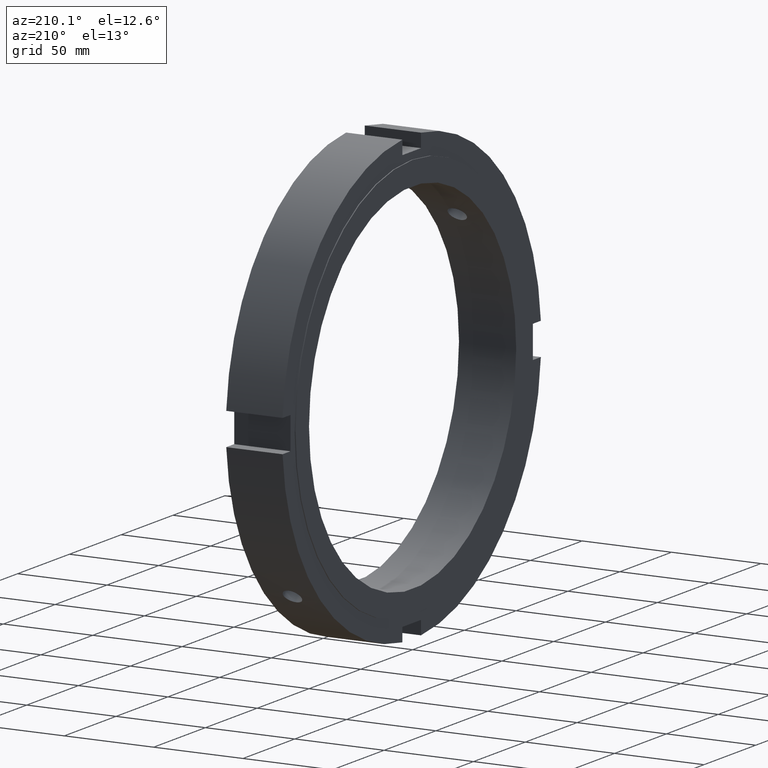
[diagram: clean part render]
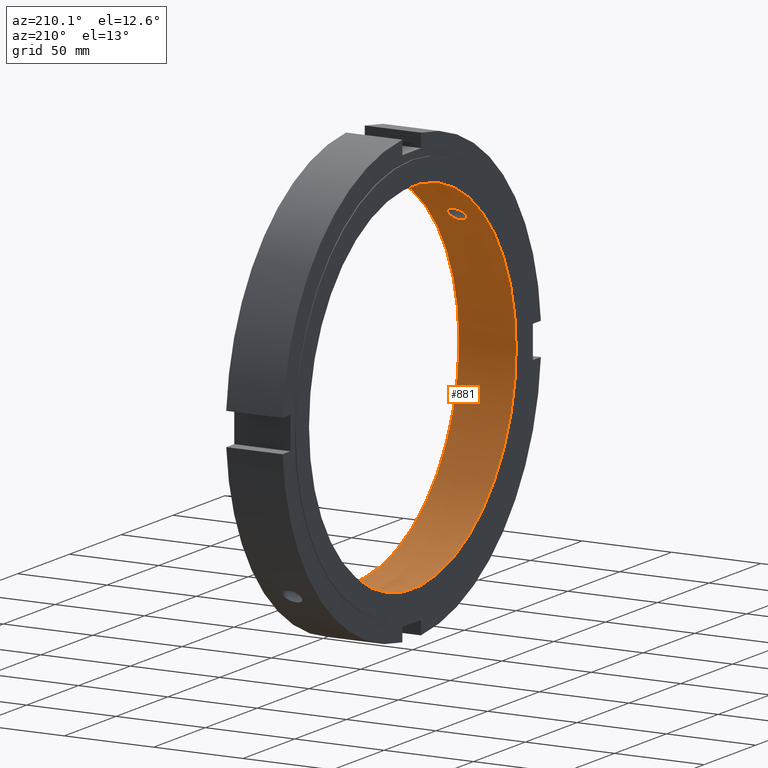
[diagram: same view with one face highlighted and labeled with its STEP entity id]
A machine part, auxiliary view. The second image highlights one B-rep face of the part: STEP entity #881.
In plain terms, the highlighted cylindrical surface (bore or boss wall) has radius 100 mm, axis along (1, 0, 0).
Its self-contained STEP definition (entity closure, byte-faithful):
#114=CARTESIAN_POINT('',(15.999999999999979,-74.193358875861520,67.047337745190305));
#115=VERTEX_POINT('',#114);
#116=CARTESIAN_POINT('',(15.999999999999979,-74.193358875861492,67.047337745190333));
#117=CARTESIAN_POINT('',(16.634581936719329,-74.193358875861492,67.047337745190333));
#118=CARTESIAN_POINT('',(17.311387968910935,-74.108383700795017,67.141746327502418));
#119=CARTESIAN_POINT('',(18.556310772006050,-73.760763251919144,67.523451030525536));
#120=CARTESIAN_POINT('',(19.124436701656222,-73.497876808904849,67.810497567163452));
#121=CARTESIAN_POINT('',(20.021584330169027,-72.886178554204179,68.467557656156472));
#122=CARTESIAN_POINT('',(20.410445743173572,-72.496526139867967,68.881356700433287));
#123=CARTESIAN_POINT('',(20.926156568092612,-71.633259416526144,69.778676890604928));
#124=CARTESIAN_POINT('',(21.052999999999980,-71.159395210449901,70.261961026859595));
#125=CARTESIAN_POINT('',(21.052999999999980,-70.261961026859510,71.159395210449986));
#126=CARTESIAN_POINT('',(20.926156568092601,-69.778676890604856,71.633259416526229));
#127=CARTESIAN_POINT('',(20.410445743173561,-68.881356700433201,72.496526139868052));
#128=CARTESIAN_POINT('',(20.021584330169027,-68.467557656156373,72.886178554204250));
#129=CARTESIAN_POINT('',(19.124436701656219,-67.810497567163367,73.497876808904920));
#130=CARTESIAN_POINT('',(18.556310772006039,-67.523451030525464,73.760763251919215));
#131=CARTESIAN_POINT('',(17.311387968910928,-67.141746327502347,74.108383700795088));
#132=CARTESIAN_POINT('',(16.634581936719325,-67.047337745190262,74.193358875861563));
#133=CARTESIAN_POINT('',(15.365418063280632,-67.047337745190262,74.193358875861563));
#134=CARTESIAN_POINT('',(14.688612031089029,-67.141746327502347,74.108383700795088));
#135=CARTESIAN_POINT('',(13.443689227993918,-67.523451030525464,73.760763251919215));
#136=CARTESIAN_POINT('',(12.875563298343737,-67.810497567163367,73.497876808904920));
#137=CARTESIAN_POINT('',(11.978415669830929,-68.467557656156373,72.886178554204250));
#138=CARTESIAN_POINT('',(11.589554256826393,-68.881356700433201,72.496526139868052));
#139=CARTESIAN_POINT('',(11.073843431907353,-69.778676890604856,71.633259416526229));
#140=CARTESIAN_POINT('',(10.946999999999978,-70.261961026859510,71.159395210449986));
#141=CARTESIAN_POINT('',(10.946999999999978,-71.159395210449915,70.261961026859595));
#142=CARTESIAN_POINT('',(11.073843431907349,-71.633259416526158,69.778676890604942));
#143=CARTESIAN_POINT('',(11.589554256826386,-72.496526139867981,68.881356700433287));
#144=CARTESIAN_POINT('',(11.978415669830929,-72.886178554204179,68.467557656156472));
#145=CARTESIAN_POINT('',(12.875563298343735,-73.497876808904849,67.810497567163452));
#146=CARTESIAN_POINT('',(13.443689227993911,-73.760763251919144,67.523451030525536));
#147=CARTESIAN_POINT('',(14.688612031089029,-74.108383700795017,67.141746327502418));
#148=CARTESIAN_POINT('',(15.365418063280632,-74.193358875861492,67.047337745190333));
#149=CARTESIAN_POINT('',(15.999999999999979,-74.193358875861492,67.047337745190333));
#150=B_SPLINE_CURVE_WITH_KNOTS('',3,(#116,#117,#118,#119,#120,#121,#122,#123,#124,#125,#126,#127,#128,#129,#130,#131,#132,#133,#134,#135,#136,#137,#138,#139,#140,#141,#142,#143,#144,#145,#146,#147,#148,#149),.UNSPECIFIED.,.T.,.U.,(4,2,2,2,2,2,2,2,2,2,2,2,2,2,2,2,4),(0.0,0.190374581015805,0.380749162031610,0.571123701097224,0.761498240162839,0.951872779228454,1.142247318294069,1.332621899309874,1.522996480325678,1.713371061341482,1.903745642357287,2.094120181422902,2.284494720488517,2.474869259554132,2.665243798619746,2.855618379635551,3.045992960651356),.UNSPECIFIED.);
#151=EDGE_CURVE('',#115,#115,#150,.T.);
#202=CARTESIAN_POINT('',(15.999999999999979,67.047337745190291,-74.193358875861534));
#203=VERTEX_POINT('',#202);
#204=CARTESIAN_POINT('',(15.999999999999977,67.047337745190276,-74.193358875861534));
#205=CARTESIAN_POINT('',(15.365418063280627,67.047337745190276,-74.193358875861534));
#206=CARTESIAN_POINT('',(14.688612031089026,67.141746327502375,-74.108383700795059));
#207=CARTESIAN_POINT('',(13.443689227993907,67.523451030525493,-73.760763251919187));
#208=CARTESIAN_POINT('',(12.875563298343737,67.810497567163424,-73.497876808904863));
#209=CARTESIAN_POINT('',(11.978415669830934,68.467557656156416,-72.886178554204193));
#210=CARTESIAN_POINT('',(11.589554256826391,68.881356700433244,-72.496526139867996));
#211=CARTESIAN_POINT('',(11.073843431907358,69.778676890604885,-71.633259416526187));
#212=CARTESIAN_POINT('',(10.946999999999978,70.261961026859552,-71.159395210449944));
#213=CARTESIAN_POINT('',(10.946999999999978,71.159395210449944,-70.261961026859552));
#214=CARTESIAN_POINT('',(11.073843431907349,71.633259416526201,-69.778676890604899));
#215=CARTESIAN_POINT('',(11.589554256826386,72.496526139868024,-68.881356700433244));
#216=CARTESIAN_POINT('',(11.978415669830929,72.886178554204207,-68.467557656156416));
#217=CARTESIAN_POINT('',(12.875563298343735,73.497876808904877,-67.810497567163409));
#218=CARTESIAN_POINT('',(13.443689227993911,73.760763251919187,-67.523451030525507));
#219=CARTESIAN_POINT('',(14.688612031089024,74.108383700795059,-67.141746327502389));
#220=CARTESIAN_POINT('',(15.365418063280632,74.193358875861520,-67.047337745190305));
#221=CARTESIAN_POINT('',(16.634581936719325,74.193358875861520,-67.047337745190291));
#222=CARTESIAN_POINT('',(17.311387968910935,74.108383700795059,-67.141746327502403));
#223=CARTESIAN_POINT('',(18.556310772006047,73.760763251919187,-67.523451030525507));
#224=CARTESIAN_POINT('',(19.124436701656219,73.497876808904877,-67.810497567163409));
#225=CARTESIAN_POINT('',(20.021584330169027,72.886178554204207,-68.467557656156416));
#226=CARTESIAN_POINT('',(20.410445743173572,72.496526139868024,-68.881356700433244));
#227=CARTESIAN_POINT('',(20.926156568092608,71.633259416526187,-69.778676890604899));
#228=CARTESIAN_POINT('',(21.052999999999980,71.159395210449944,-70.261961026859552));
#229=CARTESIAN_POINT('',(21.052999999999980,70.261961026859552,-71.159395210449944));
#230=CARTESIAN_POINT('',(20.926156568092598,69.778676890604871,-71.633259416526201));
#231=CARTESIAN_POINT('',(20.410445743173568,68.881356700433230,-72.496526139868010));
#232=CARTESIAN_POINT('',(20.021584330169024,68.467557656156416,-72.886178554204193));
#233=CARTESIAN_POINT('',(19.124436701656222,67.810497567163424,-73.497876808904877));
#234=CARTESIAN_POINT('',(18.556310772006050,67.523451030525493,-73.760763251919187));
#235=CARTESIAN_POINT('',(17.311387968910935,67.141746327502375,-74.108383700795059));
#236=CARTESIAN_POINT('',(16.634581936719329,67.047337745190276,-74.193358875861534));
#237=CARTESIAN_POINT('',(15.999999999999979,67.047337745190276,-74.193358875861534));
#238=B_SPLINE_CURVE_WITH_KNOTS('',3,(#204,#205,#206,#207,#208,#209,#210,#211,#212,#213,#214,#215,#216,#217,#218,#219,#220,#221,#222,#223,#224,#225,#226,#227,#228,#229,#230,#231,#232,#233,#234,#235,#236,#237),.UNSPECIFIED.,.T.,.U.,(4,2,2,2,2,2,2,2,2,2,2,2,2,2,2,2,4),(0.0,0.190374581015805,0.380749162031610,0.571123701097224,0.761498240162838,0.951872779228453,1.142247318294068,1.332621899309872,1.522996480325677,1.713371061341481,1.903745642357286,2.094120181422901,2.284494720488516,2.474869259554130,2.665243798619744,2.855618379635549,3.045992960651354),.UNSPECIFIED.);
#239=EDGE_CURVE('',#203,#203,#238,.T.);
#712=CARTESIAN_POINT('',(31.999999999999979,100.0,0.0));
#713=VERTEX_POINT('',#712);
#714=CARTESIAN_POINT('',(31.999999999999979,0.0,0.0));
#715=DIRECTION('',(1.0,0.0,0.0));
#716=DIRECTION('',(0.0,1.0,0.0));
#717=AXIS2_PLACEMENT_3D('',#714,#715,#716);
#718=CIRCLE('',#717,100.0);
#719=EDGE_CURVE('',#713,#713,#718,.T.);
#805=CARTESIAN_POINT('',(-2.972154E-014,100.0,0.0));
#806=VERTEX_POINT('',#805);
#807=CARTESIAN_POINT('',(-2.972449E-014,0.0,0.0));
#808=DIRECTION('',(1.0,0.0,0.0));
#809=DIRECTION('',(0.0,1.0,0.0));
#810=AXIS2_PLACEMENT_3D('',#807,#808,#809);
#811=CIRCLE('',#810,100.0);
#812=EDGE_CURVE('',#806,#806,#811,.T.);
#864=CARTESIAN_POINT('',(15.999999999999975,0.0,0.0));
#865=DIRECTION('',(1.0,0.0,0.0));
#866=DIRECTION('',(0.0,1.0,0.0));
#867=AXIS2_PLACEMENT_3D('',#864,#865,#866);
#868=CYLINDRICAL_SURFACE('',#867,100.0);
#869=ORIENTED_EDGE('',*,*,#812,.F.);
#870=EDGE_LOOP('',(#869));
#871=FACE_OUTER_BOUND('',#870,.T.);
#872=ORIENTED_EDGE('',*,*,#151,.T.);
#873=EDGE_LOOP('',(#872));
#874=FACE_BOUND('',#873,.T.);
#875=ORIENTED_EDGE('',*,*,#239,.T.);
#876=EDGE_LOOP('',(#875));
#877=FACE_BOUND('',#876,.T.);
#878=ORIENTED_EDGE('',*,*,#719,.T.);
#879=EDGE_LOOP('',(#878));
#880=FACE_BOUND('',#879,.T.);
#881=ADVANCED_FACE('',(#871,#874,#877,#880),#868,.F.);